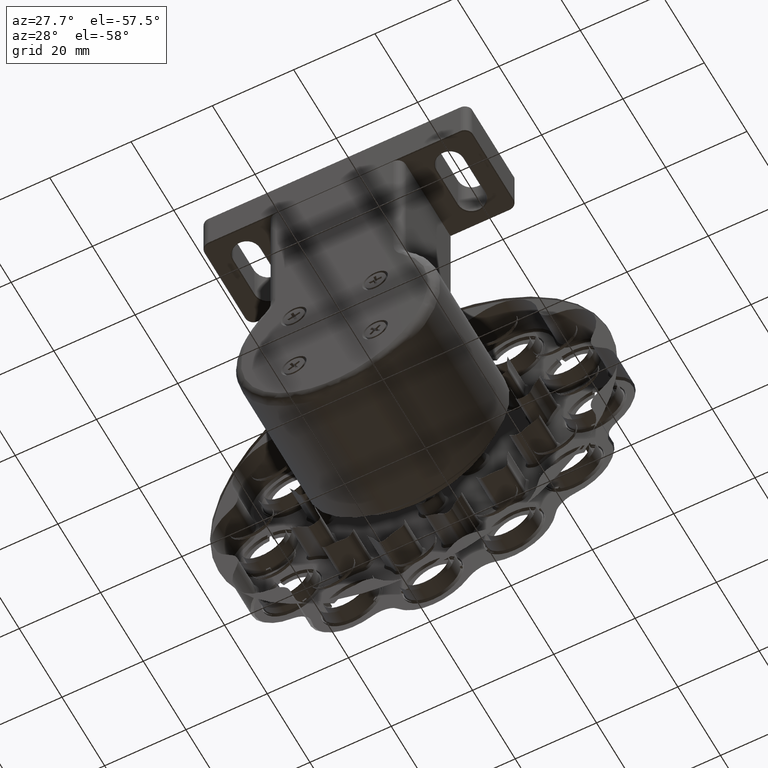
[diagram: clean part render]
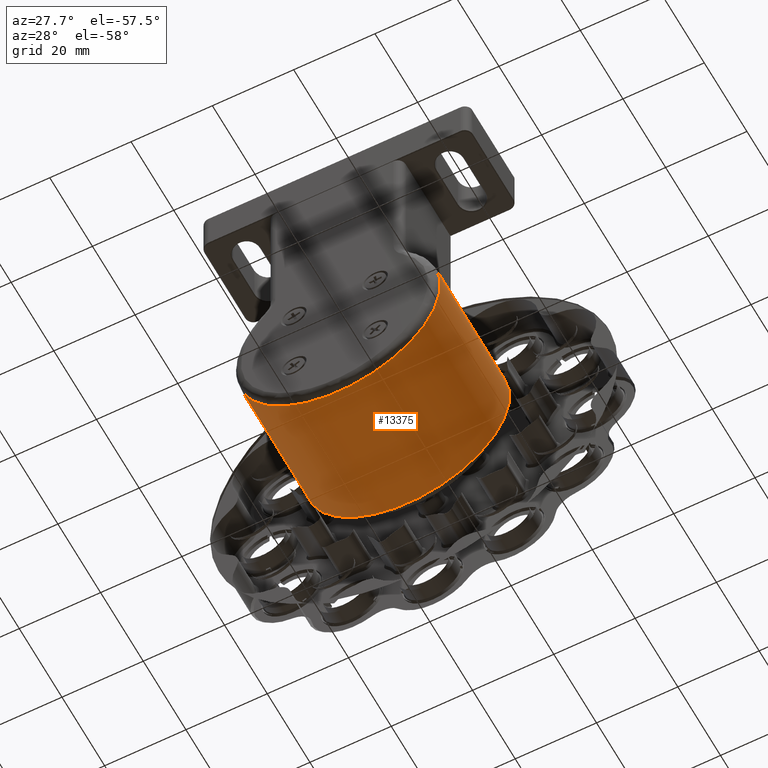
[diagram: same view with one face highlighted and labeled with its STEP entity id]
A machine part, auxiliary view. The second image highlights one B-rep face of the part: STEP entity #13375.
In plain terms, the highlighted cylindrical surface (partial cylindrical patch) has radius 25 mm, axis along (0, 1, 0).
Its self-contained STEP definition (entity closure, byte-faithful):
#1792 = AXIS2_PLACEMENT_3D ( 'NONE', #6918, #25216, #29719 ) ;
#2218 = ORIENTED_EDGE ( 'NONE', *, *, #21819, .T. ) ;
#2392 = CARTESIAN_POINT ( 'NONE',  ( -18.03769428238040362, -6.413894785601367055, 69.99999999999998579 ) ) ;
#2393 = EDGE_LOOP ( 'NONE', ( #2218, #2550, #5474, #17640 ) ) ;
#2550 = ORIENTED_EDGE ( 'NONE', *, *, #18353, .T. ) ;
#2916 = VECTOR ( 'NONE', #11698, 1000.000000000000000 ) ;
#3545 = AXIS2_PLACEMENT_3D ( 'NONE', #23217, #11499, #9406 ) ;
#5474 = ORIENTED_EDGE ( 'NONE', *, *, #22707, .T. ) ;
#6918 = CARTESIAN_POINT ( 'NONE',  ( -18.03769428238040362, -8.413894785601366166, 69.99999999999998579 ) ) ;
#7097 = VECTOR ( 'NONE', #9869, 1000.000000000000000 ) ;
#7805 = EDGE_CURVE ( 'NONE', #17174, #9650, #23393, .T. ) ;
#8655 = CIRCLE ( 'NONE', #17262, 25.00000000000000711 ) ;
#9185 = CARTESIAN_POINT ( 'NONE',  ( -0.1210276157137304409, -6.413894785601367055, 87.43539662742306007 ) ) ;
#9310 = CARTESIAN_POINT ( 'NONE',  ( -0.1210276157137257780, -8.413894785601366166, 87.43539662742306007 ) ) ;
#9406 = DIRECTION ( 'NONE',  ( 0.000000000000000000, 0.000000000000000000, 1.000000000000000000 ) ) ;
#9617 = VERTEX_POINT ( 'NONE', #29690 ) ;
#9650 = VERTEX_POINT ( 'NONE', #14068 ) ;
#9869 = DIRECTION ( 'NONE',  ( 0.000000000000000000, 1.000000000000000000, 0.000000000000000000 ) ) ;
#11499 = DIRECTION ( 'NONE',  ( -0.000000000000000000, -1.000000000000000000, -0.000000000000000000 ) ) ;
#11698 = DIRECTION ( 'NONE',  ( -0.000000000000000000, -1.000000000000000000, -0.000000000000000000 ) ) ;
#12410 = CARTESIAN_POINT ( 'NONE',  ( -35.95436094904707858, -8.413894785601366166, 87.43539662742306007 ) ) ;
#13375 = ADVANCED_FACE ( 'NONE', ( #25367 ), #25070, .T. ) ;
#14068 = CARTESIAN_POINT ( 'NONE',  ( -35.95436094902311197, 26.08610521440115804, 87.43539662743903307 ) ) ;
#14089 = DIRECTION ( 'NONE',  ( 0.000000000000000000, 1.000000000000000000, 0.000000000000000000 ) ) ;
#16483 = CIRCLE ( 'NONE', #3545, 25.00000000000000711 ) ;
#17174 = VERTEX_POINT ( 'NONE', #27319 ) ;
#17262 = AXIS2_PLACEMENT_3D ( 'NONE', #2392, #14089, #28057 ) ;
#17640 = ORIENTED_EDGE ( 'NONE', *, *, #7805, .T. ) ;
#18353 = EDGE_CURVE ( 'NONE', #9617, #24519, #20713, .T. ) ;
#20713 = LINE ( 'NONE', #9310, #2916 ) ;
#21819 = EDGE_CURVE ( 'NONE', #9650, #9617, #16483, .T. ) ;
#22707 = EDGE_CURVE ( 'NONE', #24519, #17174, #8655, .T. ) ;
#23217 = CARTESIAN_POINT ( 'NONE',  ( -18.03769428238040362, 26.08610521439862850, 69.99999999999998579 ) ) ;
#23393 = LINE ( 'NONE', #12410, #7097 ) ;
#24519 = VERTEX_POINT ( 'NONE', #9185 ) ;
#25070 = CYLINDRICAL_SURFACE ( 'NONE', #1792, 25.00000000000000711 ) ;
#25216 = DIRECTION ( 'NONE',  ( 0.000000000000000000, 1.000000000000000000, 0.000000000000000000 ) ) ;
#25367 = FACE_OUTER_BOUND ( 'NONE', #2393, .T. ) ;
#27319 = CARTESIAN_POINT ( 'NONE',  ( -35.95436094904707147, -6.413894785601367055, 87.43539662742306007 ) ) ;
#28057 = DIRECTION ( 'NONE',  ( 0.000000000000000000, 0.000000000000000000, 1.000000000000000000 ) ) ;
#29690 = CARTESIAN_POINT ( 'NONE',  ( -0.1210276157376788397, 26.08610521437273633, 87.43539662741061136 ) ) ;
#29719 = DIRECTION ( 'NONE',  ( 0.000000000000000000, 0.000000000000000000, 1.000000000000000000 ) ) ;